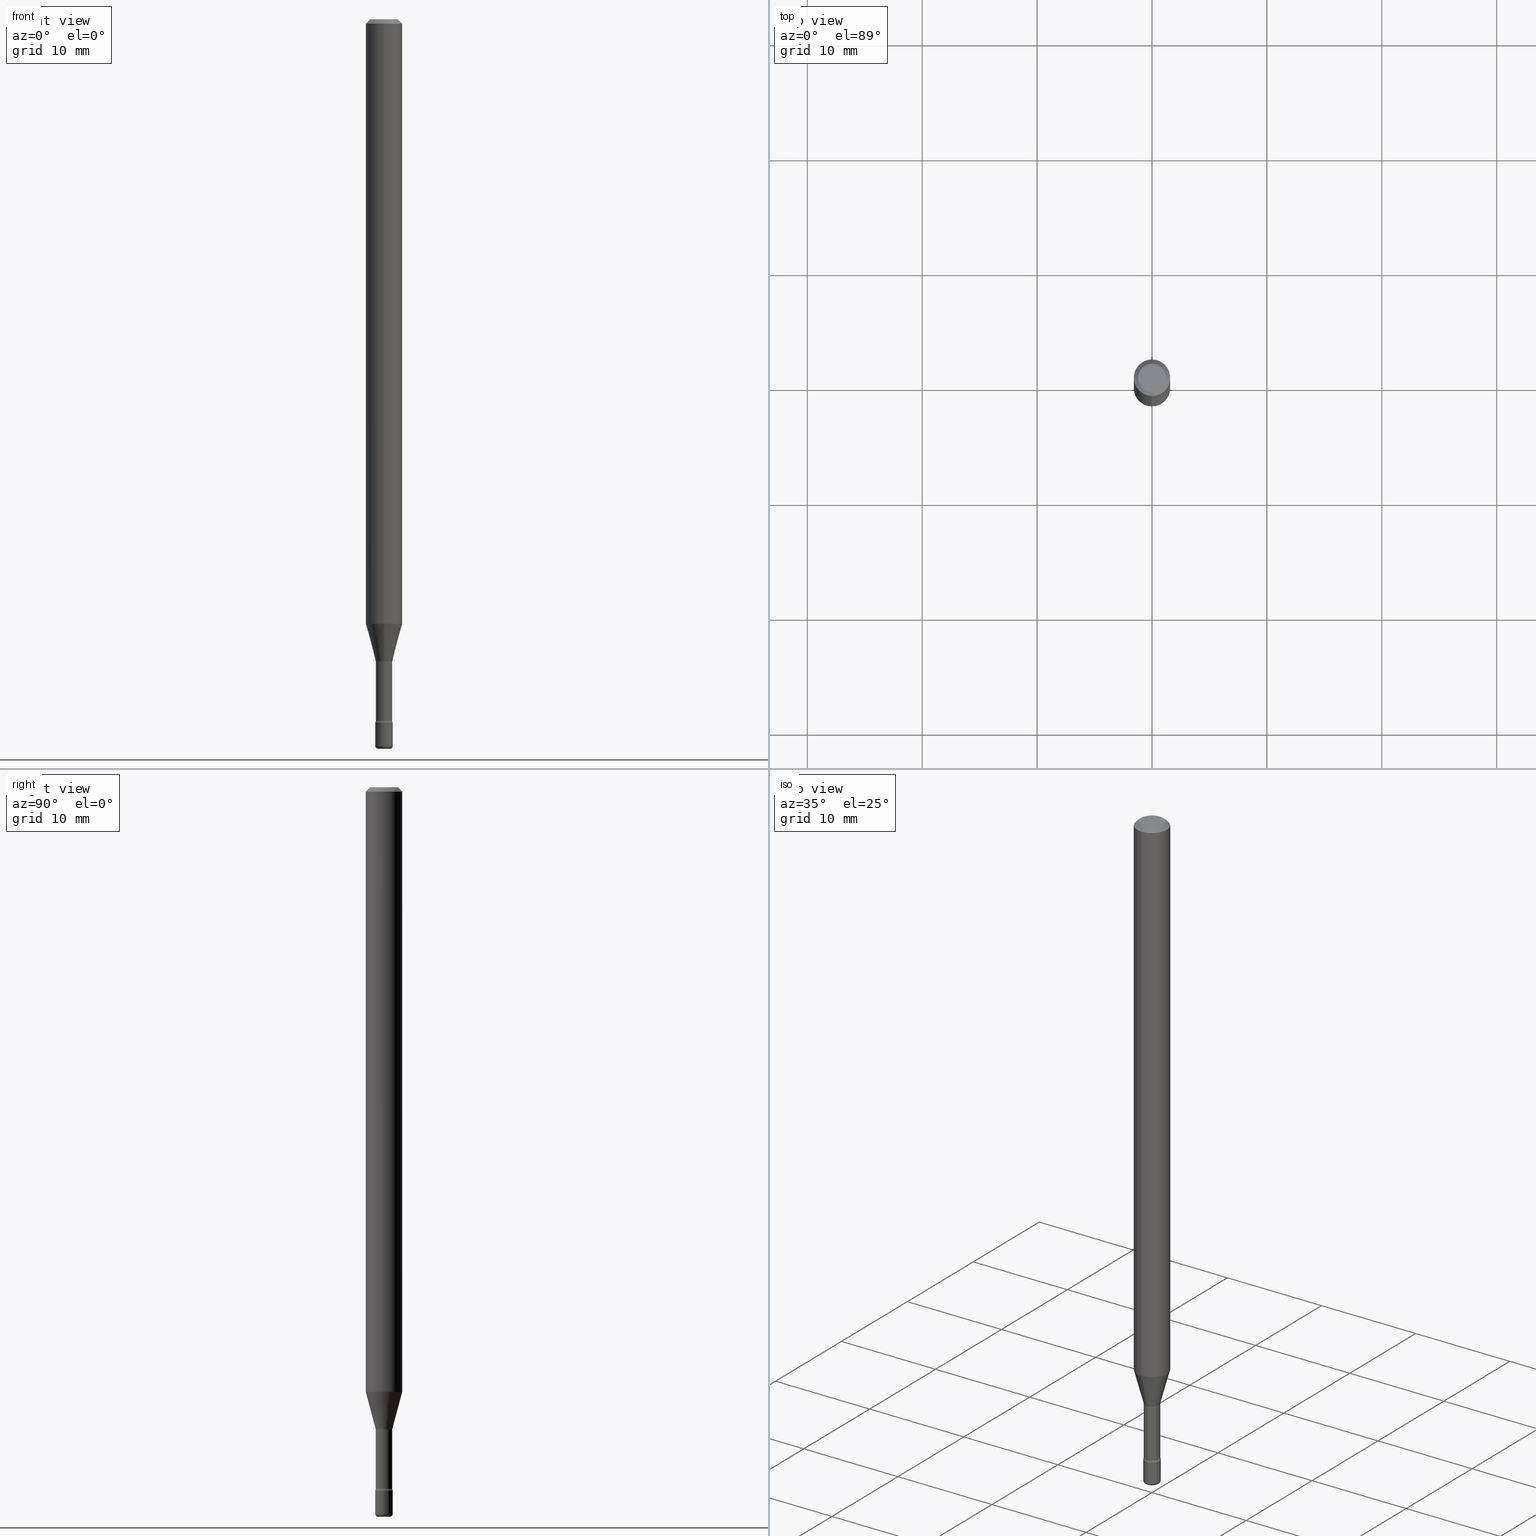
[diagram: canonical four-view strip — front | top / right | iso, engineering-drawing reading convention]
A machine part, canonical four-view strip (front | top / right | iso — engineering-drawing reading convention). The complete STEP part file that produces these views, byte-faithful:
ISO-10303-21;
HEADER;
FILE_DESCRIPTION (( 'STEP AP203' ),
    '1' );
FILE_NAME ('08926.STEP',
    '2024-03-06T20:11:13',
    ( '' ),
    ( '' ),
    'SwSTEP 2.0',
    'SolidWorks 2023',
    '' );
FILE_SCHEMA (( 'CONFIG_CONTROL_DESIGN' ));
ENDSEC;

DATA;
#1 = CONICAL_SURFACE ( 'NONE', #371, 0.02871111260566398468, 0.2617993877991500740 ) ;
#2 = DIRECTION ( 'NONE',  ( -1.807323732225328562E-15, -0.2588190451025179639, 0.9659258262890690894 ) ) ;
#3 = EDGE_LOOP ( 'NONE', ( #424, #198, #558, #128 ) ) ;
#4 = DIRECTION ( 'NONE',  ( -6.982962677686265922E-15, -1.000000000000000000, 4.370956789862821150E-15 ) ) ;
#5 = CYLINDRICAL_SURFACE ( 'NONE', #219, 0.06250000000000000000 ) ;
#6 = PERSON_AND_ORGANIZATION ( #410, #104 ) ;
#7 = CARTESIAN_POINT ( 'NONE',  ( -2.004886277601455257E-16, -0.02871111260567165910, -2.198092501787273001 ) ) ;
#8 = PERSON_AND_ORGANIZATION ( #410, #104 ) ;
#9 = CONICAL_SURFACE ( 'NONE', #332, 0.02871111260566398468, 0.2617993877991500740 ) ;
#10 = CARTESIAN_POINT ( 'NONE',  ( 5.384860654748895550E-29, -7.688153879032997927E-15, -2.201974787463810923 ) ) ;
#11 = AXIS2_PLACEMENT_3D ( 'NONE', #354, #185, #447 ) ;
#12 = DATE_AND_TIME ( #542, #380 ) ;
#13 = VERTEX_POINT ( 'NONE', #97 ) ;
#14 =( CONVERSION_BASED_UNIT ( 'INCH', #457 ) LENGTH_UNIT ( ) NAMED_UNIT ( #59 ) );
#15 = CC_DESIGN_PERSON_AND_ORGANIZATION_ASSIGNMENT ( #366, #116, ( #525 ) ) ;
#16 = ADVANCED_FACE ( 'NONE', ( #381 ), #432, .F. ) ;
#17 = APPLICATION_PROTOCOL_DEFINITION ( 'international standard', 'config_control_design', 1994, #383 ) ;
#18 = CYLINDRICAL_SURFACE ( 'NONE', #338, 0.02820000000000003060 ) ;
#19 = ORIENTED_EDGE ( 'NONE', *, *, #53, .F. ) ;
#20 = AXIS2_PLACEMENT_3D ( 'NONE', #379, #122, #211 ) ;
#21 = SHAPE_DEFINITION_REPRESENTATION ( #96, #80 ) ;
#22 = TOROIDAL_SURFACE ( 'NONE', #483, 0.02000000000000000042, 0.01000000000000008521 ) ;
#23 = DIRECTION ( 'NONE',  ( -6.982962677686261977E-15, -1.000000000000000000, 0.000000000000000000 ) ) ;
#24 = CIRCLE ( 'NONE', #230, 0.02819999999999999590 ) ;
#25 = COORDINATED_UNIVERSAL_TIME_OFFSET ( 5, 0, .BEHIND. ) ;
#26 = VERTEX_POINT ( 'NONE', #40 ) ;
#27 = EDGE_CURVE ( 'NONE', #355, #479, #298, .T. ) ;
#28 = CARTESIAN_POINT ( 'NONE',  ( 3.316907271900975110E-16, 0.04749999999999998668, 5.964760994839002447E-17 ) ) ;
#29 = EDGE_CURVE ( 'NONE', #406, #145, #293, .T. ) ;
#30 = VERTEX_POINT ( 'NONE', #321 ) ;
#31 = DIRECTION ( 'NONE',  ( -2.438088387897960049E-29, 3.491481338843145188E-15, 1.000000000000000000 ) ) ;
#32 = DIRECTION ( 'NONE',  ( -6.982962677686266711E-15, -1.000000000000000000, 3.491481338843145583E-15 ) ) ;
#33 = DATE_TIME_ROLE ( 'classification_date' ) ;
#34 = LOCAL_TIME ( 15, 11, 13.00000000000000000, #289 ) ;
#35 = FACE_OUTER_BOUND ( 'NONE', #474, .T. ) ;
#36 = AXIS2_PLACEMENT_3D ( 'NONE', #393, #146, #356 ) ;
#37 = DIRECTION ( 'NONE',  ( -6.982962677686265922E-15, -1.000000000000000000, 3.491444804258467311E-15 ) ) ;
#38 = DIRECTION ( 'NONE',  ( -2.445494318149261734E-29, 3.491444804258467311E-15, 1.000000000000000000 ) ) ;
#39 = EDGE_CURVE ( 'NONE', #13, #548, #496, .T. ) ;
#40 = CARTESIAN_POINT ( 'NONE',  ( -1.969195475106944252E-16, -0.02820000000000845788, -2.402875394747777893 ) ) ;
#41 = CARTESIAN_POINT ( 'NONE',  ( 2.131628207280887687E-16, 0.02999999999999155426, -2.410000000000000142 ) ) ;
#42 = CARTESIAN_POINT ( 'NONE',  ( 6.089217327400989947E-29, -8.693788533719431716E-15, -2.489999999999999769 ) ) ;
#43 = ORIENTED_EDGE ( 'NONE', *, *, #256, .F. ) ;
#44 = DIRECTION ( 'NONE',  ( -6.982962677686265133E-15, -1.000000000000000000, 3.491444804258467311E-15 ) ) ;
#45 = CIRCLE ( 'NONE', #537, 0.03000000000000000583 ) ;
#46 = ORIENTED_EDGE ( 'NONE', *, *, #453, .F. ) ;
#47 = DIRECTION ( 'NONE',  ( 2.445494318149261734E-29, -3.491444804258467311E-15, -1.000000000000000000 ) ) ;
#48 = ORIENTED_EDGE ( 'NONE', *, *, #281, .F. ) ;
#49 = ORIENTED_EDGE ( 'NONE', *, *, #358, .T. ) ;
#50 = CARTESIAN_POINT ( 'NONE',  ( 6.626289385845218521E-46, -9.456899470604124385E-32, -2.709092258991166066E-17 ) ) ;
#51 = ORIENTED_EDGE ( 'NONE', *, *, #27, .T. ) ;
#52 = CARTESIAN_POINT ( 'NONE',  ( -3.773273898774339776E-16, -0.04749999999999998668, 1.387527056123654977E-16 ) ) ;
#53 = EDGE_CURVE ( 'NONE', #30, #236, #229, .T. ) ;
#54 = CIRCLE ( 'NONE', #193, 0.01499999999999995087 ) ;
#55 = LOCAL_TIME ( 15, 11, 13.00000000000000000, #287 ) ;
#56 = VERTEX_POINT ( 'NONE', #52 ) ;
#57 = AXIS2_PLACEMENT_3D ( 'NONE', #422, #201, #166 ) ;
#58 = DIRECTION ( 'NONE',  ( 6.982962677686265922E-15, 1.000000000000000000, -3.483106191921935554E-15 ) ) ;
#59 = DIMENSIONAL_EXPONENTS ( 1.000000000000000000, 0.000000000000000000, 0.000000000000000000, 0.000000000000000000, 0.000000000000000000, 0.000000000000000000, 0.000000000000000000 ) ;
#60 = CARTESIAN_POINT ( 'NONE',  ( 4.440892098500625669E-16, 0.06250000000000000000, 2.598580986250918563E-16 ) ) ;
#61 = LINE ( 'NONE', #234, #494 ) ;
#62 = DIRECTION ( 'NONE',  ( -2.445468806185136597E-29, 3.491481338843145583E-15, 1.000000000000000000 ) ) ;
#63 = CARTESIAN_POINT ( 'NONE',  ( -4.364351673553412809E-16, -0.06250000000000725808, -2.071990657300387451 ) ) ;
#64 = LOCAL_TIME ( 15, 11, 13.00000000000000000, #25 ) ;
#65 = ADVANCED_FACE ( 'NONE', ( #311 ), #227, .T. ) ;
#66 = CARTESIAN_POINT ( 'NONE',  ( 0.02999999999999999889, -8.623958906942569995E-15, -2.410000000000000142 ) ) ;
#67 = ORIENTED_EDGE ( 'NONE', *, *, #405, .F. ) ;
#68 = CARTESIAN_POINT ( 'NONE',  ( -3.016639876759928238E-16, -0.04320000000000769058, -2.201974787463810923 ) ) ;
#69 = AXIS2_PLACEMENT_3D ( 'NONE', #516, #571, #485 ) ;
#70 = AXIS2_PLACEMENT_3D ( 'NONE', #456, #111, #277 ) ;
#71 = VECTOR ( 'NONE', #156, 39.37007874015748143 ) ;
#72 = CARTESIAN_POINT ( 'NONE',  ( 3.840629472727447874E-16, 0.04749999999999998668, -1.929345507921888190E-16 ) ) ;
#73 = TOROIDAL_SURFACE ( 'NONE', #105, 0.04320000000000000229, 0.01500000000000002373 ) ;
#74 = PRODUCT_DEFINITION ( 'UNKNOWN', '', #194, #312 ) ;
#75 = DIRECTION ( 'NONE',  ( 2.438088387897960049E-29, -3.491481338843145188E-15, -1.000000000000000000 ) ) ;
#76 = CARTESIAN_POINT ( 'NONE',  ( 5.893579822906179826E-29, -8.414470026611981678E-15, -2.410000000000000142 ) ) ;
#77 = ORIENTED_EDGE ( 'NONE', *, *, #510, .T. ) ;
#78 = ORIENTED_EDGE ( 'NONE', *, *, #501, .F. ) ;
#79 = DIRECTION ( 'NONE',  ( -1.000000000000000000, 6.982962677686265922E-15, -4.883557194083112340E-29 ) ) ;
#80 = ADVANCED_BREP_SHAPE_REPRESENTATION ( '08926', ( #253, #397, #70 ), #121 ) ;
#81 = CARTESIAN_POINT ( 'NONE',  ( 2.094888803306469144E-16, 0.02999999999999158548, -2.410000000000000142 ) ) ;
#82 = FACE_OUTER_BOUND ( 'NONE', #304, .T. ) ;
#83 = CARTESIAN_POINT ( 'NONE',  ( 5.384916831450678257E-29, -7.688073430798666133E-15, -2.201974787463810923 ) ) ;
#84 = AXIS2_PLACEMENT_3D ( 'NONE', #188, #32, #252 ) ;
#85 = AXIS2_PLACEMENT_3D ( 'NONE', #81, #513, #37 ) ;
#86 = ORIENTED_EDGE ( 'NONE', *, *, #199, .F. ) ;
#87 = CARTESIAN_POINT ( 'NONE',  ( 6.626289385845218521E-46, -9.456899470604124385E-32, -2.709092258991166066E-17 ) ) ;
#88 = APPROVAL ( #378, 'UNSPECIFIED' ) ;
#89 = CARTESIAN_POINT ( 'NONE',  ( 0.02000000000000000042, -8.868362600661589961E-15, -2.500000000000000000 ) ) ;
#90 = ORIENTED_EDGE ( 'NONE', *, *, #251, .F. ) ;
#91 = EDGE_CURVE ( 'NONE', #56, #231, #197, .T. ) ;
#92 = ORIENTED_EDGE ( 'NONE', *, *, #367, .T. ) ;
#93 = EDGE_CURVE ( 'NONE', #552, #249, #413, .T. ) ;
#94 = DIRECTION ( 'NONE',  ( -6.982962677686265922E-15, -1.000000000000000000, 0.000000000000000000 ) ) ;
#95 = VECTOR ( 'NONE', #2, 39.37007874015748854 ) ;
#96 = PRODUCT_DEFINITION_SHAPE ( 'NONE', 'NONE',  #74 ) ;
#97 = CARTESIAN_POINT ( 'NONE',  ( -2.004886277601455257E-16, -0.02871111260567165910, -2.198092501787273001 ) ) ;
#98 = FACE_OUTER_BOUND ( 'NONE', #541, .T. ) ;
#99 = DIRECTION ( 'NONE',  ( 1.000000000000000000, -6.982962677686284065E-15, 0.000000000000000000 ) ) ;
#100 = ORIENTED_EDGE ( 'NONE', *, *, #53, .T. ) ;
#101 = FACE_OUTER_BOUND ( 'NONE', #296, .T. ) ;
#102 = DIRECTION ( 'NONE',  ( -2.445494318149261734E-29, 3.491444804258467311E-15, 1.000000000000000000 ) ) ;
#103 = CIRCLE ( 'NONE', #372, 0.04749999999999998668 ) ;
#104 = ORGANIZATION ( 'UNSPECIFIED', 'UNSPECIFIED', '' ) ;
#105 = AXIS2_PLACEMENT_3D ( 'NONE', #431, #38, #385 ) ;
#106 = CARTESIAN_POINT ( 'NONE',  ( 6.089217327400989947E-29, -8.693788533719431716E-15, -2.489999999999999769 ) ) ;
#107 = EDGE_CURVE ( 'NONE', #515, #282, #152, .T. ) ;
#108 =( NAMED_UNIT ( * ) SI_UNIT ( $, .STERADIAN. ) SOLID_ANGLE_UNIT ( ) );
#109 = ORIENTED_EDGE ( 'NONE', *, *, #572, .F. ) ;
#110 = DIRECTION ( 'NONE',  ( -2.445494318149261734E-29, 3.491444804258467311E-15, 1.000000000000000000 ) ) ;
#111 = DIRECTION ( 'NONE',  ( 0.000000000000000000, 0.000000000000000000, 1.000000000000000000 ) ) ;
#112 = ORIENTED_EDGE ( 'NONE', *, *, #267, .T. ) ;
#113 = DIRECTION ( 'NONE',  ( -2.445494318149262015E-29, 3.491444804258467311E-15, 1.000000000000000000 ) ) ;
#114 = ADVANCED_FACE ( 'NONE', ( #535 ), #1, .T. ) ;
#115 = AXIS2_PLACEMENT_3D ( 'NONE', #273, #443, #58 ) ;
#116 = PERSON_AND_ORGANIZATION_ROLE ( 'design_owner' ) ;
#117 = CARTESIAN_POINT ( 'NONE',  ( -1.169113584055446105E-44, 1.669184350826100908E-30, 4.780733988912460139E-16 ) ) ;
#118 = CALENDAR_DATE ( 2024, 6, 3 ) ;
#119 = CARTESIAN_POINT ( 'NONE',  ( -0.02000000000000000042, -8.551679986567411552E-15, -2.489999999999999769 ) ) ;
#120 = AXIS2_PLACEMENT_3D ( 'NONE', #42, #186, #144 ) ;
#121 =( GEOMETRIC_REPRESENTATION_CONTEXT ( 3 ) GLOBAL_UNCERTAINTY_ASSIGNED_CONTEXT ( ( #376 ) ) GLOBAL_UNIT_ASSIGNED_CONTEXT ( ( #14, #461, #108 ) ) REPRESENTATION_CONTEXT ( 'NONE', 'WORKASPACE' ) );
#122 = DIRECTION ( 'NONE',  ( -2.445494318149261734E-29, 3.491444804258467311E-15, 1.000000000000000000 ) ) ;
#123 = ORIENTED_EDGE ( 'NONE', *, *, #399, .F. ) ;
#124 = PERSON_AND_ORGANIZATION_ROLE ( 'classification_officer' ) ;
#125 = DIRECTION ( 'NONE',  ( 7.105427357601001859E-15, 1.000000000000000000, -3.491481338843145583E-15 ) ) ;
#126 = EDGE_LOOP ( 'NONE', ( #301, #100 ) ) ;
#127 = ADVANCED_FACE ( 'NONE', ( #452 ), #283, .T. ) ;
#128 = ORIENTED_EDGE ( 'NONE', *, *, #270, .F. ) ;
#129 = DIRECTION ( 'NONE',  ( -2.445494318149261734E-29, 3.491444804258467311E-15, 1.000000000000000000 ) ) ;
#130 = ADVANCED_FACE ( 'NONE', ( #233 ), #519, .F. ) ;
#131 = ORIENTED_EDGE ( 'NONE', *, *, #262, .T. ) ;
#132 = AXIS2_PLACEMENT_3D ( 'NONE', #377, #554, #331 ) ;
#133 = DIRECTION ( 'NONE',  ( -2.445468806185136877E-29, 3.491481338843145188E-15, 1.000000000000000000 ) ) ;
#134 = CIRCLE ( 'NONE', #161, 0.06250000000000000000 ) ;
#135 = CARTESIAN_POINT ( 'NONE',  ( 4.440892098501130047E-16, 0.06249999999999274886, -2.071990657300387895 ) ) ;
#136 = FACE_OUTER_BOUND ( 'NONE', #532, .T. ) ;
#137 = VERTEX_POINT ( 'NONE', #182 ) ;
#138 = LINE ( 'NONE', #395, #550 ) ;
#139 = CC_DESIGN_PERSON_AND_ORGANIZATION_ASSIGNMENT ( #547, #551, ( #194 ) ) ;
#140 = VECTOR ( 'NONE', #334, 39.37007874015748143 ) ;
#141 = DIRECTION ( 'NONE',  ( -6.982962677686265133E-15, -1.000000000000000000, 0.000000000000000000 ) ) ;
#142 = ORIENTED_EDGE ( 'NONE', *, *, #501, .T. ) ;
#143 = DIRECTION ( 'NONE',  ( -2.445468806185136597E-29, 3.491481338843145583E-15, 1.000000000000000000 ) ) ;
#144 = DIRECTION ( 'NONE',  ( 1.000000000000000000, -6.982962677686280910E-15, 4.883557194083117946E-29 ) ) ;
#145 = VERTEX_POINT ( 'NONE', #409 ) ;
#146 = DIRECTION ( 'NONE',  ( -2.445494318149261734E-29, 3.491444804258467311E-15, 1.000000000000000000 ) ) ;
#147 = CARTESIAN_POINT ( 'NONE',  ( 3.240469674128075134E-16, 0.02871111260565631026, -2.198092501787273001 ) ) ;
#148 = COORDINATED_UNIVERSAL_TIME_OFFSET ( 5, 0, .BEHIND. ) ;
#149 = AXIS2_PLACEMENT_3D ( 'NONE', #477, #433, #214 ) ;
#150 = CIRCLE ( 'NONE', #84, 0.01000000000000008521 ) ;
#151 = AXIS2_PLACEMENT_3D ( 'NONE', #68, #420, #255 ) ;
#152 = LINE ( 'NONE', #60, #429 ) ;
#153 = LINE ( 'NONE', #497, #319 ) ;
#154 = ORIENTED_EDGE ( 'NONE', *, *, #394, .F. ) ;
#155 = ORIENTED_EDGE ( 'NONE', *, *, #91, .F. ) ;
#156 = DIRECTION ( 'NONE',  ( -4.851104656540965064E-15, -0.7071067811865501263, -0.7071067811865449082 ) ) ;
#157 = APPROVAL_ROLE ( '' ) ;
#158 = ADVANCED_FACE ( 'NONE', ( #348 ), #22, .T. ) ;
#159 = EDGE_CURVE ( 'NONE', #137, #492, #177, .T. ) ;
#160 = PERSON_AND_ORGANIZATION ( #410, #104 ) ;
#161 = AXIS2_PLACEMENT_3D ( 'NONE', #569, #568, #217 ) ;
#162 = DIRECTION ( 'NONE',  ( -6.982962677686265922E-15, -1.000000000000000000, 0.000000000000000000 ) ) ;
#163 = DIRECTION ( 'NONE',  ( -2.445494318149261734E-29, 3.491444804258467311E-15, 1.000000000000000000 ) ) ;
#164 = EDGE_CURVE ( 'NONE', #548, #231, #359, .T. ) ;
#165 = ORIENTED_EDGE ( 'NONE', *, *, #91, .T. ) ;
#166 = DIRECTION ( 'NONE',  ( -6.982962677686265922E-15, -1.000000000000000000, 4.370956789862821150E-15 ) ) ;
#167 = CIRCLE ( 'NONE', #476, 0.06250000000000000000 ) ;
#168 = CC_DESIGN_PERSON_AND_ORGANIZATION_ASSIGNMENT ( #6, #190, ( #74 ) ) ;
#169 = CC_DESIGN_APPROVAL ( #88, ( #285 ) ) ;
#170 = DIRECTION ( 'NONE',  ( -6.982962677686265922E-15, -1.000000000000000000, 3.491444804258467311E-15 ) ) ;
#171 = EDGE_CURVE ( 'NONE', #236, #30, #565, .T. ) ;
#172 = CALENDAR_DATE ( 2024, 6, 3 ) ;
#173 = FACE_OUTER_BOUND ( 'NONE', #543, .T. ) ;
#174 = LINE ( 'NONE', #337, #275 ) ;
#175 = CIRCLE ( 'NONE', #340, 0.04749999999999998668 ) ;
#176 = CARTESIAN_POINT ( 'NONE',  ( 6.113672015462842613E-29, -8.728703347107864943E-15, -2.500000000000000000 ) ) ;
#177 = CIRCLE ( 'NONE', #493, 0.02000000000000000042 ) ;
#178 = ORIENTED_EDGE ( 'NONE', *, *, #342, .T. ) ;
#179 = ORIENTED_EDGE ( 'NONE', *, *, #572, .T. ) ;
#180 = LINE ( 'NONE', #475, #411 ) ;
#181 = DIRECTION ( 'NONE',  ( -6.982962677686265133E-15, -1.000000000000000000, 3.491444804258467311E-15 ) ) ;
#182 = CARTESIAN_POINT ( 'NONE',  ( -0.02000000000000000042, -8.533610256473622336E-15, -2.500000000000000000 ) ) ;
#183 = DIRECTION ( 'NONE',  ( -6.982962677686265922E-15, -1.000000000000000000, 3.483106191921935554E-15 ) ) ;
#184 = ORIENTED_EDGE ( 'NONE', *, *, #171, .F. ) ;
#185 = DIRECTION ( 'NONE',  ( 1.000000000000000000, -7.105427357601001070E-15, 4.926315061122460309E-29 ) ) ;
#186 = DIRECTION ( 'NONE',  ( -2.445468806185136597E-29, 3.491481338843145583E-15, 1.000000000000000000 ) ) ;
#187 = ORIENTED_EDGE ( 'NONE', *, *, #164, .T. ) ;
#188 = CARTESIAN_POINT ( 'NONE',  ( 0.02000000000000000042, -8.833447787273158312E-15, -2.489999999999999769 ) ) ;
#189 = DIRECTION ( 'NONE',  ( -6.982962677686265922E-15, -1.000000000000000000, 3.491444804258466917E-15 ) ) ;
#190 = PERSON_AND_ORGANIZATION_ROLE ( 'creator' ) ;
#191 = ORIENTED_EDGE ( 'NONE', *, *, #390, .F. ) ;
#192 = DIRECTION ( 'NONE',  ( -2.445468806185136597E-29, 3.491481338843145583E-15, 1.000000000000000000 ) ) ;
#193 = AXIS2_PLACEMENT_3D ( 'NONE', #295, #79, #23 ) ;
#194 = PRODUCT_DEFINITION_FORMATION_WITH_SPECIFIED_SOURCE ( 'ANY', '', #525, .NOT_KNOWN. ) ;
#195 = ADVANCED_FACE ( 'NONE', ( #101 ), #309, .T. ) ;
#196 = ORIENTED_EDGE ( 'NONE', *, *, #342, .F. ) ;
#197 = LINE ( 'NONE', #324, #71 ) ;
#198 = ORIENTED_EDGE ( 'NONE', *, *, #415, .T. ) ;
#199 = EDGE_CURVE ( 'NONE', #515, #548, #529, .T. ) ;
#200 =( LENGTH_UNIT ( ) NAMED_UNIT ( * ) SI_UNIT ( $, .METRE. ) );
#201 = DIRECTION ( 'NONE',  ( -2.445494318149261734E-29, 3.491444804258467311E-15, 1.000000000000000000 ) ) ;
#202 = CIRCLE ( 'NONE', #419, 0.02819999999999999590 ) ;
#203 = AXIS2_PLACEMENT_3D ( 'NONE', #316, #237, #441 ) ;
#204 = AXIS2_PLACEMENT_3D ( 'NONE', #76, #31, #268 ) ;
#205 = CARTESIAN_POINT ( 'NONE',  ( 5.384916831450678257E-29, -7.688073430798666133E-15, -2.201974787463810923 ) ) ;
#206 = CYLINDRICAL_SURFACE ( 'NONE', #132, 0.06250000000000000000 ) ;
#207 = FACE_OUTER_BOUND ( 'NONE', #396, .T. ) ;
#208 = APPROVAL_PERSON_ORGANIZATION ( #8, #534, #157 ) ;
#209 = ORIENTED_EDGE ( 'NONE', *, *, #107, .T. ) ;
#210 = AXIS2_PLACEMENT_3D ( 'NONE', #106, #544, #489 ) ;
#211 = DIRECTION ( 'NONE',  ( -6.982962677686265133E-15, -1.000000000000000000, 0.000000000000000000 ) ) ;
#212 = ORIENTED_EDGE ( 'NONE', *, *, #164, .F. ) ;
#213 = DIRECTION ( 'NONE',  ( -6.982962677686265922E-15, -1.000000000000000000, 3.491444804258467311E-15 ) ) ;
#214 = DIRECTION ( 'NONE',  ( -6.982962677686265133E-15, -1.000000000000000000, 0.000000000000000000 ) ) ;
#215 = AXIS2_PLACEMENT_3D ( 'NONE', #434, #47, #480 ) ;
#216 = DATE_TIME_ROLE ( 'creation_date' ) ;
#217 = DIRECTION ( 'NONE',  ( -6.982962677686265922E-15, -1.000000000000000000, 3.483106191921935554E-15 ) ) ;
#218 = AXIS2_PLACEMENT_3D ( 'NONE', #28, #473, #503 ) ;
#219 = AXIS2_PLACEMENT_3D ( 'NONE', #448, #102, #189 ) ;
#220 = ORIENTED_EDGE ( 'NONE', *, *, #29, .T. ) ;
#221 = EDGE_CURVE ( 'NONE', #492, #406, #150, .T. ) ;
#222 = DIRECTION ( 'NONE',  ( -2.445494318149261734E-29, 3.491444804258467311E-15, 1.000000000000000000 ) ) ;
#223 = DIRECTION ( 'NONE',  ( -6.982962677686265922E-15, -1.000000000000000000, 0.000000000000000000 ) ) ;
#224 = CARTESIAN_POINT ( 'NONE',  ( 3.668241477223899538E-31, -5.237167206387711025E-17, -0.01500000000000002720 ) ) ;
#225 = ADVANCED_FACE ( 'NONE', ( #248 ), #382, .F. ) ;
#226 = ORIENTED_EDGE ( 'NONE', *, *, #251, .T. ) ;
#227 = CYLINDRICAL_SURFACE ( 'NONE', #36, 0.02820000000000003060 ) ;
#228 = CC_DESIGN_SECURITY_CLASSIFICATION ( #285, ( #194 ) ) ;
#229 = CIRCLE ( 'NONE', #257, 0.02999999999999999889 ) ;
#230 = AXIS2_PLACEMENT_3D ( 'NONE', #83, #392, #306 ) ;
#231 = VERTEX_POINT ( 'NONE', #288 ) ;
#232 = CARTESIAN_POINT ( 'NONE',  ( 5.067041379686452960E-29, -7.234241014903525863E-15, -2.071990657300387895 ) ) ;
#233 = FACE_OUTER_BOUND ( 'NONE', #258, .T. ) ;
#234 = CARTESIAN_POINT ( 'NONE',  ( -1.969195475107528995E-16, -0.02820000000000003060, 5.765321423713349437E-16 ) ) ;
#235 = ORIENTED_EDGE ( 'NONE', *, *, #29, .F. ) ;
#236 = VERTEX_POINT ( 'NONE', #66 ) ;
#237 = DIRECTION ( 'NONE',  ( -2.445468806185136597E-29, 3.491481338843145583E-15, 1.000000000000000000 ) ) ;
#238 = CC_DESIGN_PERSON_AND_ORGANIZATION_ASSIGNMENT ( #160, #124, ( #285 ) ) ;
#239 = AXIS2_PLACEMENT_3D ( 'NONE', #533, #143, #314 ) ;
#240 = DIRECTION ( 'NONE',  ( -2.445494318149261734E-29, 3.491444804258467311E-15, 1.000000000000000000 ) ) ;
#241 = ADVANCED_FACE ( 'NONE', ( #35 ), #512, .T. ) ;
#242 = DATE_AND_TIME ( #118, #64 ) ;
#243 = DIRECTION ( 'NONE',  ( 1.000000000000000000, -6.982962677686266711E-15, 4.876176775795935793E-29 ) ) ;
#244 = AXIS2_PLACEMENT_3D ( 'NONE', #531, #440, #94 ) ;
#245 = VECTOR ( 'NONE', #539, 39.37007874015748143 ) ;
#246 = PERSON_AND_ORGANIZATION_ROLE ( 'creator' ) ;
#247 = AXIS2_PLACEMENT_3D ( 'NONE', #524, #391, #526 ) ;
#248 = FACE_OUTER_BOUND ( 'NONE', #471, .T. ) ;
#249 = VERTEX_POINT ( 'NONE', #549 ) ;
#250 = APPROVAL_ROLE ( '' ) ;
#251 = EDGE_CURVE ( 'NONE', #307, #249, #370, .T. ) ;
#252 = DIRECTION ( 'NONE',  ( 1.000000000000000000, -6.982962677686273021E-15, 0.000000000000000000 ) ) ;
#253 = MANIFOLD_SOLID_BREP ( 'Body-Move/Copy2[1]', #509 ) ;
#254 = EDGE_LOOP ( 'NONE', ( #263, #305 ) ) ;
#255 = DIRECTION ( 'NONE',  ( -6.982962677686267499E-15, -1.000000000000000000, 0.000000000000000000 ) ) ;
#256 = EDGE_CURVE ( 'NONE', #13, #495, #350, .T. ) ;
#257 = AXIS2_PLACEMENT_3D ( 'NONE', #363, #278, #499 ) ;
#258 = EDGE_LOOP ( 'NONE', ( #435, #556, #365, #43 ) ) ;
#259 = DIRECTION ( 'NONE',  ( -2.445468806185136597E-29, 3.491481338843145583E-15, 1.000000000000000000 ) ) ;
#260 = ORIENTED_EDGE ( 'NONE', *, *, #39, .F. ) ;
#261 = FACE_OUTER_BOUND ( 'NONE', #254, .T. ) ;
#262 = EDGE_CURVE ( 'NONE', #552, #13, #369, .T. ) ;
#263 = ORIENTED_EDGE ( 'NONE', *, *, #510, .F. ) ;
#264 = AXIS2_PLACEMENT_3D ( 'NONE', #428, #163, #170 ) ;
#265 = FACE_OUTER_BOUND ( 'NONE', #3, .T. ) ;
#266 = CLOSED_SHELL ( 'NONE', ( #130, #302, #459, #195, #344, #328, #114, #536, #352, #225, #16, #292, #65, #488 ) ) ;
#267 = EDGE_CURVE ( 'NONE', #495, #249, #202, .T. ) ;
#268 = DIRECTION ( 'NONE',  ( 1.000000000000000000, -6.982962677686265922E-15, 4.876176775795935793E-29 ) ) ;
#269 = ORIENTED_EDGE ( 'NONE', *, *, #39, .T. ) ;
#270 = EDGE_CURVE ( 'NONE', #26, #355, #54, .T. ) ;
#271 = CARTESIAN_POINT ( 'NONE',  ( 5.375422723887272689E-29, -7.674518644644670387E-15, -2.198092501787273001 ) ) ;
#272 = ORIENTED_EDGE ( 'NONE', *, *, #555, .T. ) ;
#273 = CARTESIAN_POINT ( 'NONE',  ( 3.668241477223899538E-31, -5.237167206387711025E-17, -0.01500000000000002720 ) ) ;
#274 = CONICAL_SURFACE ( 'NONE', #215, 0.06250000000000000000, 0.7853981633974485010 ) ;
#275 = VECTOR ( 'NONE', #133, 39.37007874015748143 ) ;
#276 = CARTESIAN_POINT ( 'NONE',  ( -4.364351673553916201E-16, -0.06250000000000000000, 6.962886991574002702E-16 ) ) ;
#277 = DIRECTION ( 'NONE',  ( 1.000000000000000000, 0.000000000000000000, 0.000000000000000000 ) ) ;
#278 = DIRECTION ( 'NONE',  ( -2.445468806185136597E-29, 3.491481338843145583E-15, 1.000000000000000000 ) ) ;
#279 = DIRECTION ( 'NONE',  ( -2.445494318149262015E-29, 3.491444804258467311E-15, 1.000000000000000000 ) ) ;
#280 = MECHANICAL_CONTEXT ( 'NONE', #383, 'mechanical' ) ;
#281 = EDGE_CURVE ( 'NONE', #26, #307, #297, .T. ) ;
#282 = VERTEX_POINT ( 'NONE', #514 ) ;
#283 = CYLINDRICAL_SURFACE ( 'NONE', #203, 0.03000000000000000583 ) ;
#284 = APPROVAL_STATUS ( 'not_yet_approved' ) ;
#285 = SECURITY_CLASSIFICATION ( '', '', #427 ) ;
#286 = AXIS2_PLACEMENT_3D ( 'NONE', #462, #458, #243 ) ;
#287 = COORDINATED_UNIVERSAL_TIME_OFFSET ( 5, 0, .BEHIND. ) ;
#288 = CARTESIAN_POINT ( 'NONE',  ( -4.364351673553912750E-16, -0.06250000000000005551, -0.01499999999999981036 ) ) ;
#289 = COORDINATED_UNIVERSAL_TIME_OFFSET ( 5, 0, .BEHIND. ) ;
#290 = DIRECTION ( 'NONE',  ( -6.982962677686266711E-15, -1.000000000000000000, 0.000000000000000000 ) ) ;
#291 = CIRCLE ( 'NONE', #247, 0.01499999999999995087 ) ;
#292 = ADVANCED_FACE ( 'NONE', ( #553 ), #507, .F. ) ;
#293 = CIRCLE ( 'NONE', #210, 0.03000000000000000583 ) ;
#294 = PLANE ( 'NONE',  #204 ) ;
#295 = CARTESIAN_POINT ( 'NONE',  ( -3.016639876759880413E-16, -0.04320000000000840529, -2.402875394747777449 ) ) ;
#296 = EDGE_LOOP ( 'NONE', ( #414, #165, #92, #109 ) ) ;
#297 = CIRCLE ( 'NONE', #520, 0.02820000000000006876 ) ;
#298 = CIRCLE ( 'NONE', #540, 0.02999999999999999889 ) ;
#299 = CIRCLE ( 'NONE', #69, 0.02820000000000006876 ) ;
#300 = DIRECTION ( 'NONE',  ( -2.445494318149261734E-29, 3.491444804258467311E-15, 1.000000000000000000 ) ) ;
#301 = ORIENTED_EDGE ( 'NONE', *, *, #171, .T. ) ;
#302 = ADVANCED_FACE ( 'NONE', ( #173 ), #18, .T. ) ;
#303 = DIRECTION ( 'NONE',  ( 1.839019923739598738E-15, 0.2588190451025247363, 0.9659258262890673130 ) ) ;
#304 = EDGE_LOOP ( 'NONE', ( #430, #323, #467, #123 ) ) ;
#305 = ORIENTED_EDGE ( 'NONE', *, *, #159, .F. ) ;
#306 = DIRECTION ( 'NONE',  ( -6.982962677686265922E-15, -1.000000000000000000, 0.000000000000000000 ) ) ;
#307 = VERTEX_POINT ( 'NONE', #505 ) ;
#308 = DIRECTION ( 'NONE',  ( -2.445468806185136877E-29, 3.491481338843145188E-15, 1.000000000000000000 ) ) ;
#309 = CONICAL_SURFACE ( 'NONE', #115, 0.06250000000000000000, 0.7853981633974485010 ) ;
#310 = ORIENTED_EDGE ( 'NONE', *, *, #256, .T. ) ;
#311 = FACE_OUTER_BOUND ( 'NONE', #347, .T. ) ;
#312 = DESIGN_CONTEXT ( 'detailed design', #345, 'design' ) ;
#313 = ORIENTED_EDGE ( 'NONE', *, *, #364, .T. ) ;
#314 = DIRECTION ( 'NONE',  ( 1.000000000000000000, -6.982962677686268288E-15, 0.000000000000000000 ) ) ;
#315 = EDGE_LOOP ( 'NONE', ( #220, #469, #184, #78 ) ) ;
#316 = CARTESIAN_POINT ( 'NONE',  ( 0.000000000000000000, 0.000000000000000000, 0.000000000000000000 ) ) ;
#317 = CIRCLE ( 'NONE', #421, 0.02000000000000000042 ) ;
#318 = AXIS2_PLACEMENT_3D ( 'NONE', #232, #403, #4 ) ;
#319 = VECTOR ( 'NONE', #444, 39.37007874015748143 ) ;
#320 = ORIENTED_EDGE ( 'NONE', *, *, #27, .F. ) ;
#321 = CARTESIAN_POINT ( 'NONE',  ( -0.02999999999999999889, -8.340966459437676452E-15, -2.410000000000000142 ) ) ;
#322 = EDGE_CURVE ( 'NONE', #137, #145, #481, .T. ) ;
#323 = ORIENTED_EDGE ( 'NONE', *, *, #159, .T. ) ;
#324 = CARTESIAN_POINT ( 'NONE',  ( -4.287811248607203282E-16, -0.06250000000000005551, -0.01499999999999981036 ) ) ;
#325 = PERSON_AND_ORGANIZATION ( #410, #104 ) ;
#326 = APPROVAL_DATE_TIME ( #242, #416 ) ;
#327 = DIRECTION ( 'NONE',  ( -2.445494318149261734E-29, 3.491444804258467311E-15, 1.000000000000000000 ) ) ;
#328 = ADVANCED_FACE ( 'NONE', ( #336 ), #9, .T. ) ;
#329 = APPROVAL_ROLE ( '' ) ;
#330 = VERTEX_POINT ( 'NONE', #72 ) ;
#331 = DIRECTION ( 'NONE',  ( -6.982962677686265922E-15, -1.000000000000000000, 3.491444804258466917E-15 ) ) ;
#332 = AXIS2_PLACEMENT_3D ( 'NONE', #468, #129, #417 ) ;
#333 = CC_DESIGN_APPROVAL ( #416, ( #194 ) ) ;
#334 = DIRECTION ( 'NONE',  ( -2.445494318149262015E-29, 3.491444804258467311E-15, 1.000000000000000000 ) ) ;
#335 = ORIENTED_EDGE ( 'NONE', *, *, #386, .T. ) ;
#336 = FACE_OUTER_BOUND ( 'NONE', #455, .T. ) ;
#337 = CARTESIAN_POINT ( 'NONE',  ( 0.03000000000000000583, -2.094888803305880457E-16, 1.462853032738781053E-30 ) ) ;
#338 = AXIS2_PLACEMENT_3D ( 'NONE', #117, #327, #425 ) ;
#339 = APPROVAL_PERSON_ORGANIZATION ( #325, #88, #329 ) ;
#340 = AXIS2_PLACEMENT_3D ( 'NONE', #50, #563, #181 ) ;
#341 = DIRECTION ( 'NONE',  ( -2.445468806185136597E-29, 3.491481338843145583E-15, 1.000000000000000000 ) ) ;
#342 = EDGE_CURVE ( 'NONE', #548, #515, #517, .T. ) ;
#343 = CARTESIAN_POINT ( 'NONE',  ( 0.03000000000000004746, -8.903277414050021610E-15, -2.489999999999999769 ) ) ;
#344 = ADVANCED_FACE ( 'NONE', ( #207 ), #206, .T. ) ;
#345 = APPLICATION_CONTEXT ( 'configuration controlled 3d designs of mechanical parts and assemblies' ) ;
#346 = DIRECTION ( 'NONE',  ( 1.000000000000000000, -6.982962677686299054E-15, 0.000000000000000000 ) ) ;
#347 = EDGE_LOOP ( 'NONE', ( #90, #522, #272, #154 ) ) ;
#348 = FACE_OUTER_BOUND ( 'NONE', #538, .T. ) ;
#349 = CARTESIAN_POINT ( 'NONE',  ( -2.094888803305288318E-16, -0.03000000000000838801, -2.410000000000000142 ) ) ;
#350 = CIRCLE ( 'NONE', #151, 0.01500000000000001853 ) ;
#351 = ADVANCED_FACE ( 'NONE', ( #508 ), #294, .T. ) ;
#352 = ADVANCED_FACE ( 'NONE', ( #136 ), #274, .T. ) ;
#353 = ORIENTED_EDGE ( 'NONE', *, *, #267, .F. ) ;
#354 = CARTESIAN_POINT ( 'NONE',  ( 3.069544618484170870E-16, 0.04319999999999230705, -2.201974787463811367 ) ) ;
#355 = VERTEX_POINT ( 'NONE', #349 ) ;
#356 = DIRECTION ( 'NONE',  ( -6.982962677686265133E-15, -1.000000000000000000, 3.491444804258466128E-15 ) ) ;
#357 = ORIENTED_EDGE ( 'NONE', *, *, #270, .T. ) ;
#358 = EDGE_CURVE ( 'NONE', #552, #515, #180, .T. ) ;
#359 = LINE ( 'NONE', #276, #245 ) ;
#360 = TOROIDAL_SURFACE ( 'NONE', #120, 0.02000000000000000042, 0.01000000000000008521 ) ;
#361 = DATE_AND_TIME ( #412, #55 ) ;
#362 = ORIENTED_EDGE ( 'NONE', *, *, #221, .F. ) ;
#363 = CARTESIAN_POINT ( 'NONE',  ( 5.893579822906179826E-29, -8.414470026611981678E-15, -2.410000000000000142 ) ) ;
#364 = EDGE_CURVE ( 'NONE', #56, #330, #103, .T. ) ;
#365 = ORIENTED_EDGE ( 'NONE', *, *, #394, .T. ) ;
#366 = PERSON_AND_ORGANIZATION ( #410, #104 ) ;
#367 = EDGE_CURVE ( 'NONE', #231, #282, #134, .T. ) ;
#368 = PERSON_AND_ORGANIZATION ( #410, #104 ) ;
#369 = CIRCLE ( 'NONE', #20, 0.02871111260566398468 ) ;
#370 = LINE ( 'NONE', #559, #140 ) ;
#371 = AXIS2_PLACEMENT_3D ( 'NONE', #271, #110, #141 ) ;
#372 = AXIS2_PLACEMENT_3D ( 'NONE', #87, #222, #44 ) ;
#373 = APPROVAL_STATUS ( 'not_yet_approved' ) ;
#374 = ORIENTED_EDGE ( 'NONE', *, *, #504, .T. ) ;
#375 = CARTESIAN_POINT ( 'NONE',  ( 5.876218125076356369E-29, -8.389506812272643488E-15, -2.402875394747777893 ) ) ;
#376 = UNCERTAINTY_MEASURE_WITH_UNIT (LENGTH_MEASURE( 1.000000000000000082E-05 ), #14, 'distance_accuracy_value', 'NONE');
#377 = CARTESIAN_POINT ( 'NONE',  ( -1.169113584055446105E-44, 1.669184350826100908E-30, 4.780733988912460139E-16 ) ) ;
#378 = APPROVAL_STATUS ( 'not_yet_approved' ) ;
#379 = CARTESIAN_POINT ( 'NONE',  ( 5.375422723887272689E-29, -7.674518644644670387E-15, -2.198092501787273001 ) ) ;
#380 = LOCAL_TIME ( 15, 11, 13.00000000000000000, #148 ) ;
#381 = FACE_OUTER_BOUND ( 'NONE', #454, .T. ) ;
#382 = PLANE ( 'NONE',  #218 ) ;
#383 = APPLICATION_CONTEXT ( 'configuration controlled 3d designs of mechanical parts and assemblies' ) ;
#384 = CARTESIAN_POINT ( 'NONE',  ( 5.893641306739720749E-29, -8.414381978262906701E-15, -2.410000000000000142 ) ) ;
#385 = DIRECTION ( 'NONE',  ( -6.982962677686266711E-15, -1.000000000000000000, 3.491444804258467311E-15 ) ) ;
#386 = EDGE_CURVE ( 'NONE', #282, #231, #167, .T. ) ;
#387 = ORIENTED_EDGE ( 'NONE', *, *, #504, .F. ) ;
#388 = DIRECTION ( 'NONE',  ( -2.445494318149261734E-29, 3.491444804258467311E-15, 1.000000000000000000 ) ) ;
#389 = TOROIDAL_SURFACE ( 'NONE', #564, 0.04320000000000001616, 0.01499999999999994740 ) ;
#390 = EDGE_CURVE ( 'NONE', #330, #56, #175, .T. ) ;
#391 = DIRECTION ( 'NONE',  ( 1.000000000000000000, -7.105427357601001070E-15, 4.926315061122460309E-29 ) ) ;
#392 = DIRECTION ( 'NONE',  ( -2.445494318149261734E-29, 3.491444804258467311E-15, 1.000000000000000000 ) ) ;
#393 = CARTESIAN_POINT ( 'NONE',  ( -1.169113584055446105E-44, 1.669184350826100908E-30, 4.780733988912460139E-16 ) ) ;
#394 = EDGE_CURVE ( 'NONE', #249, #495, #24, .T. ) ;
#395 = CARTESIAN_POINT ( 'NONE',  ( -0.03000000000000000583, 2.131628207280300972E-16, -1.475680527076471882E-30 ) ) ;
#396 = EDGE_LOOP ( 'NONE', ( #178, #209, #486, #212 ) ) ;
#397 = MANIFOLD_SOLID_BREP ( 'Body-Move/Copy2[2]', #266 ) ;
#398 = DIRECTION ( 'NONE',  ( 1.000000000000000000, -6.982962677686280910E-15, 4.883557194083117946E-29 ) ) ;
#399 = EDGE_CURVE ( 'NONE', #145, #406, #45, .T. ) ;
#400 = FACE_OUTER_BOUND ( 'NONE', #426, .T. ) ;
#401 = AXIS2_PLACEMENT_3D ( 'NONE', #10, #570, #407 ) ;
#402 = ORIENTED_EDGE ( 'NONE', *, *, #415, .F. ) ;
#403 = DIRECTION ( 'NONE',  ( -2.445494318149261734E-29, 3.491444804258467311E-15, 1.000000000000000000 ) ) ;
#404 = APPROVAL_DATE_TIME ( #361, #534 ) ;
#405 = EDGE_CURVE ( 'NONE', #479, #355, #491, .T. ) ;
#406 = VERTEX_POINT ( 'NONE', #343 ) ;
#407 = DIRECTION ( 'NONE',  ( -6.982962677686266711E-15, -1.000000000000000000, 3.491444804258467311E-15 ) ) ;
#408 = ORIENTED_EDGE ( 'NONE', *, *, #386, .F. ) ;
#409 = CARTESIAN_POINT ( 'NONE',  ( -0.03000000000000004746, -8.480625712991401471E-15, -2.489999999999999769 ) ) ;
#410 = PERSON ( 'UNSPECIFIED', 'UNSPECIFIED', 'UNSPECIFIED', ('UNSPECIFIED'), ('UNSPECIFIED'), ('UNSPECIFIED') ) ;
#411 = VECTOR ( 'NONE', #303, 39.37007874015748854 ) ;
#412 = CALENDAR_DATE ( 2024, 6, 3 ) ;
#413 = CIRCLE ( 'NONE', #11, 0.01500000000000001853 ) ;
#414 = ORIENTED_EDGE ( 'NONE', *, *, #364, .F. ) ;
#415 = EDGE_CURVE ( 'NONE', #307, #479, #291, .T. ) ;
#416 = APPROVAL ( #373, 'UNSPECIFIED' ) ;
#417 = DIRECTION ( 'NONE',  ( -6.982962677686265133E-15, -1.000000000000000000, 0.000000000000000000 ) ) ;
#418 = DATE_AND_TIME ( #172, #482 ) ;
#419 = AXIS2_PLACEMENT_3D ( 'NONE', #205, #240, #162 ) ;
#420 = DIRECTION ( 'NONE',  ( -1.000000000000000000, 6.982962677686265922E-15, -4.883557194083112340E-29 ) ) ;
#421 = AXIS2_PLACEMENT_3D ( 'NONE', #176, #341, #521 ) ;
#422 = CARTESIAN_POINT ( 'NONE',  ( 5.067041379686452960E-29, -7.234241014903525863E-15, -2.071990657300387895 ) ) ;
#423 = APPROVAL_DATE_TIME ( #460, #88 ) ;
#424 = ORIENTED_EDGE ( 'NONE', *, *, #466, .F. ) ;
#425 = DIRECTION ( 'NONE',  ( -6.982962677686265133E-15, -1.000000000000000000, 3.491444804258466128E-15 ) ) ;
#426 = EDGE_LOOP ( 'NONE', ( #562, #498, #187, #408 ) ) ;
#427 = SECURITY_CLASSIFICATION_LEVEL ( 'unclassified' ) ;
#428 = CARTESIAN_POINT ( 'NONE',  ( 5.876156823005487003E-29, -8.389594600327222537E-15, -2.402875394747777893 ) ) ;
#429 = VECTOR ( 'NONE', #113, 39.37007874015748143 ) ;
#430 = ORIENTED_EDGE ( 'NONE', *, *, #322, .F. ) ;
#431 = CARTESIAN_POINT ( 'NONE',  ( 5.384860654748895550E-29, -7.688153879032997927E-15, -2.201974787463810923 ) ) ;
#432 = PLANE ( 'NONE',  #85 ) ;
#433 = DIRECTION ( 'NONE',  ( -2.445494318149261734E-29, 3.491444804258467311E-15, 1.000000000000000000 ) ) ;
#434 = CARTESIAN_POINT ( 'NONE',  ( 3.668241477223899538E-31, -5.237167206387711025E-17, -0.01500000000000002720 ) ) ;
#435 = ORIENTED_EDGE ( 'NONE', *, *, #262, .F. ) ;
#436 = CC_DESIGN_APPROVAL ( #534, ( #74 ) ) ;
#437 = CARTESIAN_POINT ( 'NONE',  ( 5.876156823005487003E-29, -8.389594600327222537E-15, -2.402875394747777893 ) ) ;
#438 = PRODUCT_RELATED_PRODUCT_CATEGORY ( 'detail', '', ( #525 ) ) ;
#439 = ORIENTED_EDGE ( 'NONE', *, *, #399, .T. ) ;
#440 = DIRECTION ( 'NONE',  ( -2.445494318149261734E-29, 3.491444804258467311E-15, 1.000000000000000000 ) ) ;
#441 = DIRECTION ( 'NONE',  ( 1.000000000000000000, -6.982962677686266711E-15, 4.876176775795935793E-29 ) ) ;
#442 = ORIENTED_EDGE ( 'NONE', *, *, #93, .F. ) ;
#443 = DIRECTION ( 'NONE',  ( 2.445494318149261734E-29, -3.491444804258467311E-15, -1.000000000000000000 ) ) ;
#444 = DIRECTION ( 'NONE',  ( 4.937700262164548831E-15, 0.7071067811865452413, -0.7071067811865497932 ) ) ;
#445 = CIRCLE ( 'NONE', #149, 0.02871111260566398468 ) ;
#446 = EDGE_LOOP ( 'NONE', ( #402, #48, #357, #51 ) ) ;
#447 = DIRECTION ( 'NONE',  ( 7.105427357601001859E-15, 1.000000000000000000, 0.000000000000000000 ) ) ;
#448 = CARTESIAN_POINT ( 'NONE',  ( -1.169113584055446105E-44, 1.669184350826100908E-30, 4.780733988912460139E-16 ) ) ;
#449 = ORIENTED_EDGE ( 'NONE', *, *, #322, .T. ) ;
#450 = PLANE ( 'NONE',  #566 ) ;
#451 = APPLICATION_PROTOCOL_DEFINITION ( 'international standard', 'config_control_design', 1994, #345 ) ;
#452 = FACE_OUTER_BOUND ( 'NONE', #315, .T. ) ;
#453 = EDGE_CURVE ( 'NONE', #145, #30, #138, .T. ) ;
#454 = EDGE_LOOP ( 'NONE', ( #320, #67 ) ) ;
#455 = EDGE_LOOP ( 'NONE', ( #374, #49, #196, #260 ) ) ;
#456 = CARTESIAN_POINT ( 'NONE',  ( 0.000000000000000000, 0.000000000000000000, 0.000000000000000000 ) ) ;
#457 = LENGTH_MEASURE_WITH_UNIT ( LENGTH_MEASURE( 0.02539999999999999897 ), #200 );
#458 = DIRECTION ( 'NONE',  ( -2.445468806185136597E-29, 3.491481338843145583E-15, 1.000000000000000000 ) ) ;
#459 = ADVANCED_FACE ( 'NONE', ( #265 ), #389, .F. ) ;
#460 = DATE_AND_TIME ( #502, #34 ) ;
#461 =( NAMED_UNIT ( * ) PLANE_ANGLE_UNIT ( ) SI_UNIT ( $, .RADIAN. ) );
#462 = CARTESIAN_POINT ( 'NONE',  ( 0.000000000000000000, 0.000000000000000000, 0.000000000000000000 ) ) ;
#463 = ORIENTED_EDGE ( 'NONE', *, *, #358, .F. ) ;
#464 = AXIS2_PLACEMENT_3D ( 'NONE', #119, #125, #465 ) ;
#466 = EDGE_CURVE ( 'NONE', #307, #26, #299, .T. ) ;
#465 = DIRECTION ( 'NONE',  ( -1.000000000000000000, 7.105427357600962416E-15, 0.000000000000000000 ) ) ;
#467 = ORIENTED_EDGE ( 'NONE', *, *, #221, .T. ) ;
#468 = CARTESIAN_POINT ( 'NONE',  ( 5.375422723887272689E-29, -7.674518644644670387E-15, -2.198092501787273001 ) ) ;
#469 = ORIENTED_EDGE ( 'NONE', *, *, #453, .T. ) ;
#470 = COORDINATED_UNIVERSAL_TIME_OFFSET ( 5, 0, .BEHIND. ) ;
#471 = EDGE_LOOP ( 'NONE', ( #546, #313 ) ) ;
#472 = DIRECTION ( 'NONE',  ( -1.000000000000000000, 6.982962677686265922E-15, -4.876176775795935793E-29 ) ) ;
#473 = DIRECTION ( 'NONE',  ( 2.445494318149261454E-29, -3.491444804258467311E-15, -1.000000000000000000 ) ) ;
#474 = EDGE_LOOP ( 'NONE', ( #46, #439, #142, #19 ) ) ;
#475 = CARTESIAN_POINT ( 'NONE',  ( 2.040047249755015784E-16, 0.02871111260565631026, -2.198092501787273001 ) ) ;
#476 = AXIS2_PLACEMENT_3D ( 'NONE', #224, #300, #183 ) ;
#477 = CARTESIAN_POINT ( 'NONE',  ( 5.375422723887272689E-29, -7.674518644644670387E-15, -2.198092501787273001 ) ) ;
#478 = CARTESIAN_POINT ( 'NONE',  ( 6.089217327400989947E-29, -8.693788533719431716E-15, -2.489999999999999769 ) ) ;
#479 = VERTEX_POINT ( 'NONE', #41 ) ;
#480 = DIRECTION ( 'NONE',  ( 6.982962677686265922E-15, 1.000000000000000000, -3.483106191921935554E-15 ) ) ;
#481 = CIRCLE ( 'NONE', #464, 0.01000000000000008521 ) ;
#482 = LOCAL_TIME ( 15, 11, 13.00000000000000000, #470 ) ;
#483 = AXIS2_PLACEMENT_3D ( 'NONE', #530, #62, #398 ) ;
#484 = EDGE_LOOP ( 'NONE', ( #463, #131, #269, #86 ) ) ;
#485 = DIRECTION ( 'NONE',  ( -6.982962677686266711E-15, -1.000000000000000000, 0.000000000000000000 ) ) ;
#486 = ORIENTED_EDGE ( 'NONE', *, *, #367, .F. ) ;
#487 = CARTESIAN_POINT ( 'NONE',  ( 6.113672015462842613E-29, -8.728703347107864943E-15, -2.500000000000000000 ) ) ;
#488 = ADVANCED_FACE ( 'NONE', ( #98 ), #73, .F. ) ;
#489 = DIRECTION ( 'NONE',  ( 1.000000000000000000, -6.982962677686299054E-15, 0.000000000000000000 ) ) ;
#490 = CARTESIAN_POINT ( 'NONE',  ( 1.396592535537864759E-16, 0.01999999999999127129, -2.500000000000000000 ) ) ;
#491 = CIRCLE ( 'NONE', #244, 0.02999999999999999889 ) ;
#492 = VERTEX_POINT ( 'NONE', #89 ) ;
#493 = AXIS2_PLACEMENT_3D ( 'NONE', #487, #192, #99 ) ;
#494 = VECTOR ( 'NONE', #279, 39.37007874015748143 ) ;
#495 = VERTEX_POINT ( 'NONE', #561 ) ;
#496 = LINE ( 'NONE', #7, #95 ) ;
#497 = CARTESIAN_POINT ( 'NONE',  ( 4.364351673553919652E-16, 0.06249999999999995143, -0.01500000000000024578 ) ) ;
#498 = ORIENTED_EDGE ( 'NONE', *, *, #199, .T. ) ;
#499 = DIRECTION ( 'NONE',  ( 1.000000000000000000, -6.982962677686268288E-15, 0.000000000000000000 ) ) ;
#500 = CC_DESIGN_DATE_AND_TIME_ASSIGNMENT ( #12, #216, ( #74 ) ) ;
#501 = EDGE_CURVE ( 'NONE', #406, #236, #174, .T. ) ;
#502 = CALENDAR_DATE ( 2024, 6, 3 ) ;
#503 = DIRECTION ( 'NONE',  ( 6.982962677686265922E-15, 1.000000000000000000, -3.491444804258467311E-15 ) ) ;
#504 = EDGE_CURVE ( 'NONE', #13, #552, #445, .T. ) ;
#505 = CARTESIAN_POINT ( 'NONE',  ( 2.067679361062480290E-16, 0.02819999999999168311, -2.402875394747777893 ) ) ;
#506 = CC_DESIGN_PERSON_AND_ORGANIZATION_ASSIGNMENT ( #368, #246, ( #194 ) ) ;
#507 = TOROIDAL_SURFACE ( 'NONE', #264, 0.04320000000000001616, 0.01499999999999994740 ) ;
#508 = FACE_OUTER_BOUND ( 'NONE', #126, .T. ) ;
#509 = CLOSED_SHELL ( 'NONE', ( #127, #158, #351, #523, #528, #241 ) ) ;
#510 = EDGE_CURVE ( 'NONE', #492, #137, #317, .T. ) ;
#511 = ORIENTED_EDGE ( 'NONE', *, *, #555, .F. ) ;
#512 = CYLINDRICAL_SURFACE ( 'NONE', #286, 0.03000000000000000583 ) ;
#513 = DIRECTION ( 'NONE',  ( -2.445494318149261454E-29, 3.491444804258467311E-15, 1.000000000000000000 ) ) ;
#514 = CARTESIAN_POINT ( 'NONE',  ( 4.440892098501134977E-16, 0.06249999999999993755, -0.01500000000000024578 ) ) ;
#515 = VERTEX_POINT ( 'NONE', #135 ) ;
#516 = CARTESIAN_POINT ( 'NONE',  ( 5.876218125076356369E-29, -8.389506812272643488E-15, -2.402875394747777893 ) ) ;
#517 = CIRCLE ( 'NONE', #57, 0.06250000000000000000 ) ;
#518 = APPROVAL_PERSON_ORGANIZATION ( #567, #416, #250 ) ;
#519 = TOROIDAL_SURFACE ( 'NONE', #401, 0.04320000000000000229, 0.01500000000000002373 ) ;
#520 = AXIS2_PLACEMENT_3D ( 'NONE', #375, #557, #290 ) ;
#521 = DIRECTION ( 'NONE',  ( 1.000000000000000000, -6.982962677686284065E-15, 0.000000000000000000 ) ) ;
#522 = ORIENTED_EDGE ( 'NONE', *, *, #466, .T. ) ;
#523 = ADVANCED_FACE ( 'NONE', ( #261 ), #450, .T. ) ;
#524 = CARTESIAN_POINT ( 'NONE',  ( 3.069544618484221160E-16, 0.04319999999999162704, -2.402875394747777893 ) ) ;
#525 = PRODUCT ( '08926', '08926', '', ( #280 ) ) ;
#526 = DIRECTION ( 'NONE',  ( 7.105427357600997914E-15, 1.000000000000000000, 0.000000000000000000 ) ) ;
#527 = ORIENTED_EDGE ( 'NONE', *, *, #281, .T. ) ;
#528 = ADVANCED_FACE ( 'NONE', ( #82 ), #360, .T. ) ;
#529 = CIRCLE ( 'NONE', #318, 0.06250000000000000000 ) ;
#530 = CARTESIAN_POINT ( 'NONE',  ( 6.089217327400989947E-29, -8.693788533719431716E-15, -2.489999999999999769 ) ) ;
#531 = CARTESIAN_POINT ( 'NONE',  ( 5.893641306739720749E-29, -8.414381978262906701E-15, -2.410000000000000142 ) ) ;
#532 = EDGE_LOOP ( 'NONE', ( #155, #191, #179, #335 ) ) ;
#533 = CARTESIAN_POINT ( 'NONE',  ( 5.893579822906179826E-29, -8.414470026611981678E-15, -2.410000000000000142 ) ) ;
#534 = APPROVAL ( #284, 'UNSPECIFIED' ) ;
#535 = FACE_OUTER_BOUND ( 'NONE', #484, .T. ) ;
#536 = ADVANCED_FACE ( 'NONE', ( #400 ), #5, .T. ) ;
#537 = AXIS2_PLACEMENT_3D ( 'NONE', #478, #259, #346 ) ;
#538 = EDGE_LOOP ( 'NONE', ( #77, #449, #235, #362 ) ) ;
#539 = DIRECTION ( 'NONE',  ( -2.445494318149262015E-29, 3.491444804258467311E-15, 1.000000000000000000 ) ) ;
#540 = AXIS2_PLACEMENT_3D ( 'NONE', #384, #560, #223 ) ;
#541 = EDGE_LOOP ( 'NONE', ( #442, #387, #310, #112 ) ) ;
#542 = CALENDAR_DATE ( 2024, 6, 3 ) ;
#543 = EDGE_LOOP ( 'NONE', ( #527, #226, #353, #511 ) ) ;
#544 = DIRECTION ( 'NONE',  ( -2.445468806185136597E-29, 3.491481338843145583E-15, 1.000000000000000000 ) ) ;
#545 = CC_DESIGN_DATE_AND_TIME_ASSIGNMENT ( #418, #33, ( #285 ) ) ;
#546 = ORIENTED_EDGE ( 'NONE', *, *, #390, .T. ) ;
#547 = PERSON_AND_ORGANIZATION ( #410, #104 ) ;
#548 = VERTEX_POINT ( 'NONE', #63 ) ;
#549 = CARTESIAN_POINT ( 'NONE',  ( 2.003730514844070921E-16, 0.02819999999999231108, -2.201974787463810923 ) ) ;
#550 = VECTOR ( 'NONE', #308, 39.37007874015748143 ) ;
#551 = PERSON_AND_ORGANIZATION_ROLE ( 'design_supplier' ) ;
#552 = VERTEX_POINT ( 'NONE', #147 ) ;
#553 = FACE_OUTER_BOUND ( 'NONE', #446, .T. ) ;
#554 = DIRECTION ( 'NONE',  ( -2.445494318149261734E-29, 3.491444804258467311E-15, 1.000000000000000000 ) ) ;
#555 = EDGE_CURVE ( 'NONE', #26, #495, #61, .T. ) ;
#556 = ORIENTED_EDGE ( 'NONE', *, *, #93, .T. ) ;
#557 = DIRECTION ( 'NONE',  ( -2.445494318149261734E-29, 3.491444804258467311E-15, 1.000000000000000000 ) ) ;
#558 = ORIENTED_EDGE ( 'NONE', *, *, #405, .T. ) ;
#559 = CARTESIAN_POINT ( 'NONE',  ( 2.003730514843484452E-16, 0.02820000000000003060, 3.796146554111571827E-16 ) ) ;
#560 = DIRECTION ( 'NONE',  ( -2.445494318149261734E-29, 3.491444804258467311E-15, 1.000000000000000000 ) ) ;
#561 = CARTESIAN_POINT ( 'NONE',  ( -1.969195475106988379E-16, -0.02820000000000768420, -2.201974787463810923 ) ) ;
#562 = ORIENTED_EDGE ( 'NONE', *, *, #107, .F. ) ;
#563 = DIRECTION ( 'NONE',  ( -2.445494318149261734E-29, 3.491444804258467311E-15, 1.000000000000000000 ) ) ;
#564 = AXIS2_PLACEMENT_3D ( 'NONE', #437, #388, #213 ) ;
#565 = CIRCLE ( 'NONE', #239, 0.02999999999999999889 ) ;
#566 = AXIS2_PLACEMENT_3D ( 'NONE', #490, #75, #472 ) ;
#567 = PERSON_AND_ORGANIZATION ( #410, #104 ) ;
#568 = DIRECTION ( 'NONE',  ( -2.445494318149261734E-29, 3.491444804258467311E-15, 1.000000000000000000 ) ) ;
#569 = CARTESIAN_POINT ( 'NONE',  ( 3.668241477223899538E-31, -5.237167206387711025E-17, -0.01500000000000002720 ) ) ;
#570 = DIRECTION ( 'NONE',  ( -2.445494318149261734E-29, 3.491444804258467311E-15, 1.000000000000000000 ) ) ;
#571 = DIRECTION ( 'NONE',  ( -2.445494318149261734E-29, 3.491444804258467311E-15, 1.000000000000000000 ) ) ;
#572 = EDGE_CURVE ( 'NONE', #330, #282, #153, .T. ) ;
ENDSEC;
END-ISO-10303-21;
